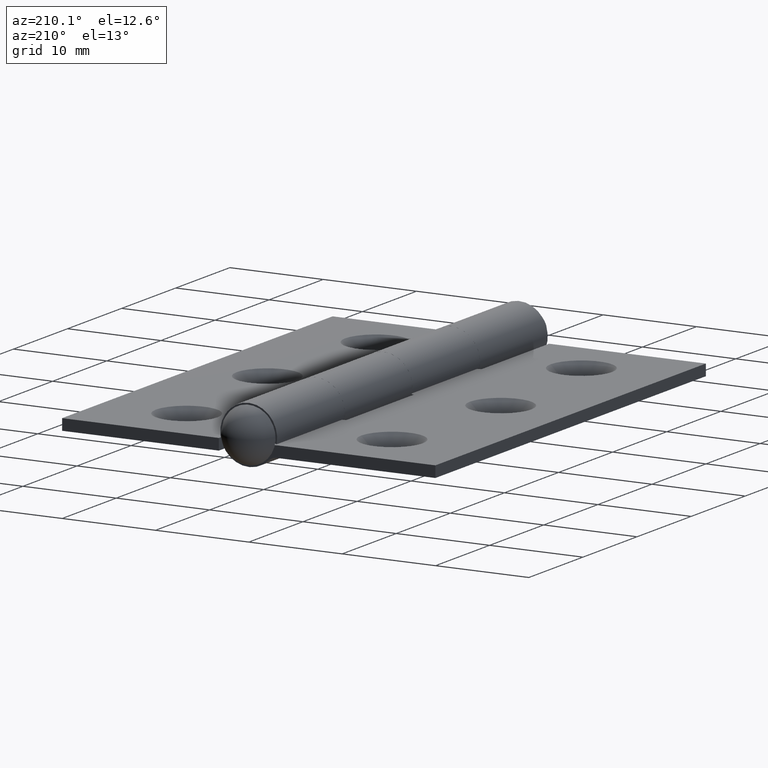
[diagram: clean part render]
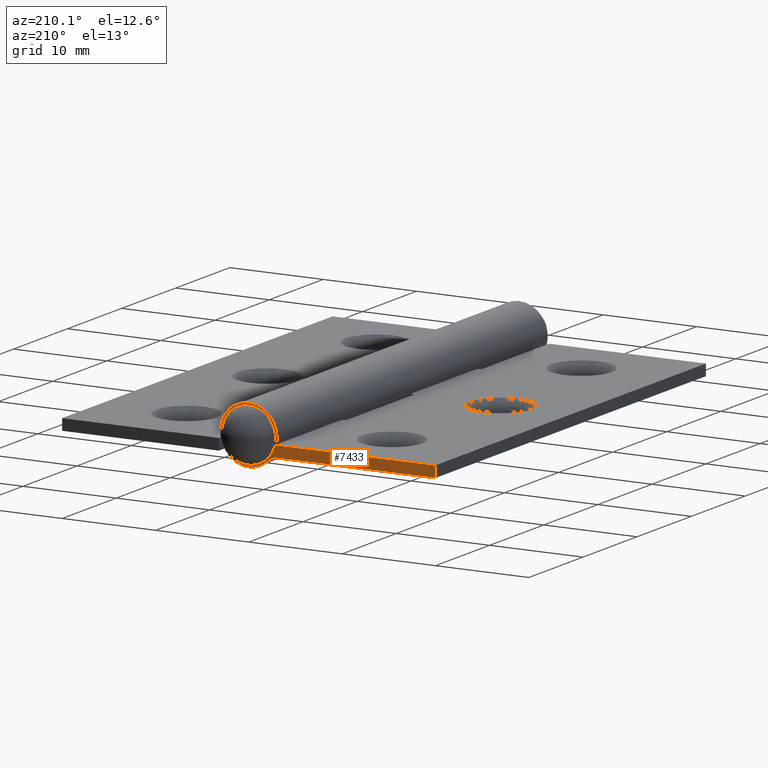
[diagram: same view with one face highlighted and labeled with its STEP entity id]
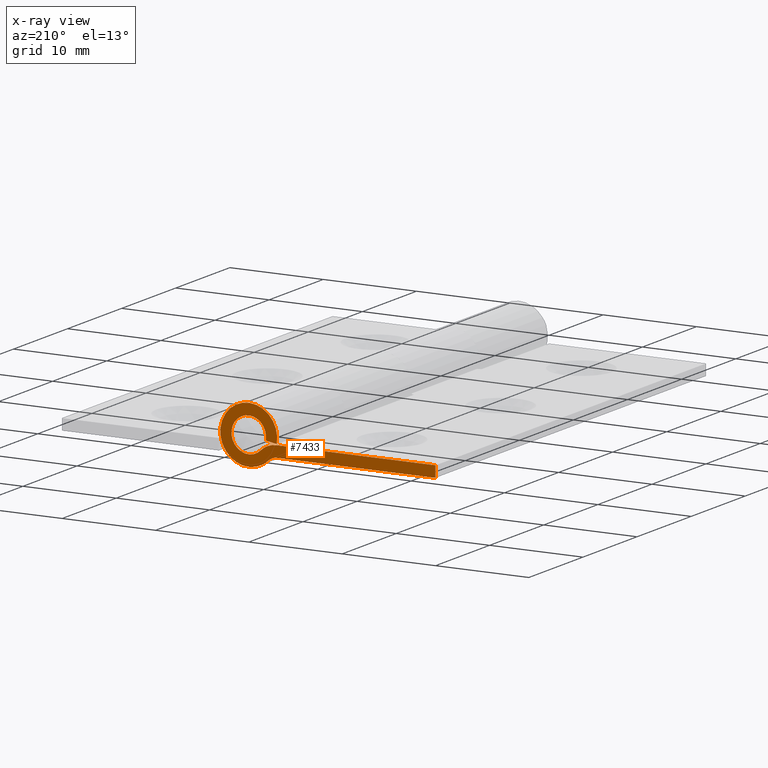
[diagram: x-ray of the same camera — body ghosted, the highlighted face saturated]
A machine part, auxiliary view. The second image highlights one B-rep face of the part: STEP entity #7433.
The next image is the same camera in x-ray: the body ghosted, the highlighted face saturated — about 0% of this face is hidden behind the body in this view.
In plain terms, the highlighted planar face has unit normal (0, -1, 0).
Its self-contained STEP definition (entity closure, byte-faithful):
#352 = AXIS2_PLACEMENT_3D ( 'NONE', #693, #4261, #6841 ) ;
#659 = DIRECTION ( 'NONE',  ( -0.000000000000000000, -0.000000000000000000, 1.000000000000000000 ) ) ;
#693 = CARTESIAN_POINT ( 'NONE',  ( -2.959729717389749215, 25.00000000000000000, -3.049999999999999822 ) ) ;
#803 = DIRECTION ( 'NONE',  ( -1.000000000000000000, -0.000000000000000000, -0.000000000000000000 ) ) ;
#970 = CARTESIAN_POINT ( 'NONE',  ( -1.288352935804951027, 25.00000000000000000, -1.327647058823528514 ) ) ;
#1070 = VECTOR ( 'NONE', #5538, 999.9999999999998863 ) ;
#1193 = CARTESIAN_POINT ( 'NONE',  ( -2.959729717389749215, 25.00000000000000000, -3.049999999999999822 ) ) ;
#1346 = LINE ( 'NONE', #6456, #1070 ) ;
#1525 = ORIENTED_EDGE ( 'NONE', *, *, #8266, .T. ) ;
#1534 = DIRECTION ( 'NONE',  ( 0.000000000000000000, 0.000000000000000000, 1.000000000000000000 ) ) ;
#1716 = FACE_OUTER_BOUND ( 'NONE', #7760, .T. ) ;
#1792 = ORIENTED_EDGE ( 'NONE', *, *, #8335, .T. ) ;
#2027 = DIRECTION ( 'NONE',  ( 0.000000000000000000, 0.000000000000000000, 1.000000000000000000 ) ) ;
#2232 = VECTOR ( 'NONE', #803, 1000.000000000000000 ) ;
#2246 = VECTOR ( 'NONE', #2896, 1000.000000000000000 ) ;
#2398 = CIRCLE ( 'NONE', #9248, 1.199999999999999734 ) ;
#2660 = ORIENTED_EDGE ( 'NONE', *, *, #3213, .T. ) ;
#2896 = DIRECTION ( 'NONE',  ( 1.000000000000000000, 0.000000000000000000, 0.000000000000000000 ) ) ;
#3213 = EDGE_CURVE ( 'NONE', #4000, #9251, #2398, .T. ) ;
#3378 = ORIENTED_EDGE ( 'NONE', *, *, #6067, .T. ) ;
#3625 = DIRECTION ( 'NONE',  ( -0.000000000000000000, -1.000000000000000000, 0.000000000000000000 ) ) ;
#3733 = EDGE_CURVE ( 'NONE', #6132, #10075, #4762, .T. ) ;
#3738 = DIRECTION ( 'NONE',  ( 0.000000000000000000, 0.000000000000000000, -1.000000000000000000 ) ) ;
#3754 = DIRECTION ( 'NONE',  ( 0.000000000000000000, -0.000000000000000000, -1.000000000000000000 ) ) ;
#3827 = CARTESIAN_POINT ( 'NONE',  ( -2.959729717389749215, 25.00000000000000000, -3.049999999999999822 ) ) ;
#4000 = VERTEX_POINT ( 'NONE', #6989 ) ;
#4261 = DIRECTION ( 'NONE',  ( 0.000000000000000000, 1.000000000000000000, -0.000000000000000000 ) ) ;
#4762 = CIRCLE ( 'NONE', #7581, 1.850000000000000533 ) ;
#4866 = CARTESIAN_POINT ( 'NONE',  ( 0.000000000000000000, 25.00000000000000000, 0.000000000000000000 ) ) ;
#5412 = PLANE ( 'NONE',  #10242 ) ;
#5474 = CARTESIAN_POINT ( 'NONE',  ( 0.000000000000000000, 25.00000000000000000, 0.000000000000000000 ) ) ;
#5538 = DIRECTION ( 'NONE',  ( -0.9836065573770492731, -0.000000000000000000, -0.1803278688524589390 ) ) ;
#5688 = EDGE_CURVE ( 'NONE', #8110, #8881, #6988, .T. ) ;
#5691 = CARTESIAN_POINT ( 'NONE',  ( -20.00000000000000000, 25.00000000000000000, -0.6500000000000000222 ) ) ;
#5789 = EDGE_CURVE ( 'NONE', #10075, #6757, #1346, .T. ) ;
#6067 = EDGE_CURVE ( 'NONE', #9251, #8769, #8171, .T. ) ;
#6084 = CARTESIAN_POINT ( 'NONE',  ( -2.959729717389750103, 25.00000000000000000, -0.6499999999999995781 ) ) ;
#6094 = AXIS2_PLACEMENT_3D ( 'NONE', #4866, #6566, #1534 ) ;
#6132 = VERTEX_POINT ( 'NONE', #970 ) ;
#6212 = DIRECTION ( 'NONE',  ( 0.000000000000000000, -1.000000000000000000, 0.000000000000000000 ) ) ;
#6456 = CARTESIAN_POINT ( 'NONE',  ( -2.999999999999999556, 25.00000000000000000, -0.5499999999999999334 ) ) ;
#6566 = DIRECTION ( 'NONE',  ( 0.000000000000000000, 1.000000000000000000, 0.000000000000000000 ) ) ;
#6698 = CIRCLE ( 'NONE', #6094, 3.050000000000000266 ) ;
#6757 = VERTEX_POINT ( 'NONE', #10184 ) ;
#6781 = ORIENTED_EDGE ( 'NONE', *, *, #5789, .T. ) ;
#6841 = DIRECTION ( 'NONE',  ( 0.000000000000000000, 0.000000000000000000, -1.000000000000000000 ) ) ;
#6988 = LINE ( 'NONE', #8740, #2246 ) ;
#6989 = CARTESIAN_POINT ( 'NONE',  ( -2.124041326597350121, 25.00000000000000000, -2.188823529411764390 ) ) ;
#7169 = EDGE_CURVE ( 'NONE', #8881, #6132, #10516, .T. ) ;
#7433 = ADVANCED_FACE ( 'NONE', ( #1716 ), #5412, .F. ) ;
#7581 = AXIS2_PLACEMENT_3D ( 'NONE', #5474, #8001, #2027 ) ;
#7673 = ORIENTED_EDGE ( 'NONE', *, *, #5688, .T. ) ;
#7760 = EDGE_LOOP ( 'NONE', ( #1792, #7673, #10176, #8459, #6781, #1525, #2660, #3378 ) ) ;
#8001 = DIRECTION ( 'NONE',  ( -0.000000000000000000, -1.000000000000000000, -0.000000000000000000 ) ) ;
#8110 = VERTEX_POINT ( 'NONE', #5691 ) ;
#8171 = LINE ( 'NONE', #9114, #2232 ) ;
#8215 = CARTESIAN_POINT ( 'NONE',  ( -20.00000000000000000, 25.00000000000000000, -1.849999999999999867 ) ) ;
#8266 = EDGE_CURVE ( 'NONE', #6757, #4000, #6698, .T. ) ;
#8335 = EDGE_CURVE ( 'NONE', #8769, #8110, #8418, .T. ) ;
#8418 = LINE ( 'NONE', #9880, #10079 ) ;
#8459 = ORIENTED_EDGE ( 'NONE', *, *, #3733, .T. ) ;
#8488 = CARTESIAN_POINT ( 'NONE',  ( -1.819672131147541672, 25.00000000000000000, -0.3336065573770494175 ) ) ;
#8740 = CARTESIAN_POINT ( 'NONE',  ( -20.00000000000000000, 25.00000000000000000, -0.6500000000000000222 ) ) ;
#8769 = VERTEX_POINT ( 'NONE', #8215 ) ;
#8881 = VERTEX_POINT ( 'NONE', #6084 ) ;
#9114 = CARTESIAN_POINT ( 'NONE',  ( -20.00000000000000000, 25.00000000000000000, -1.849999999999999867 ) ) ;
#9248 = AXIS2_PLACEMENT_3D ( 'NONE', #1193, #3625, #3738 ) ;
#9251 = VERTEX_POINT ( 'NONE', #10102 ) ;
#9880 = CARTESIAN_POINT ( 'NONE',  ( -20.00000000000000000, 25.00000000000000000, -0.6500000000000000222 ) ) ;
#10075 = VERTEX_POINT ( 'NONE', #8488 ) ;
#10079 = VECTOR ( 'NONE', #659, 1000.000000000000000 ) ;
#10102 = CARTESIAN_POINT ( 'NONE',  ( -2.959729717389749215, 25.00000000000000000, -1.849999999999999867 ) ) ;
#10176 = ORIENTED_EDGE ( 'NONE', *, *, #7169, .T. ) ;
#10184 = CARTESIAN_POINT ( 'NONE',  ( -2.999999999999999556, 25.00000000000000000, -0.5500000000000020428 ) ) ;
#10242 = AXIS2_PLACEMENT_3D ( 'NONE', #3827, #6212, #3754 ) ;
#10516 = CIRCLE ( 'NONE', #352, 2.400000000000000355 ) ;